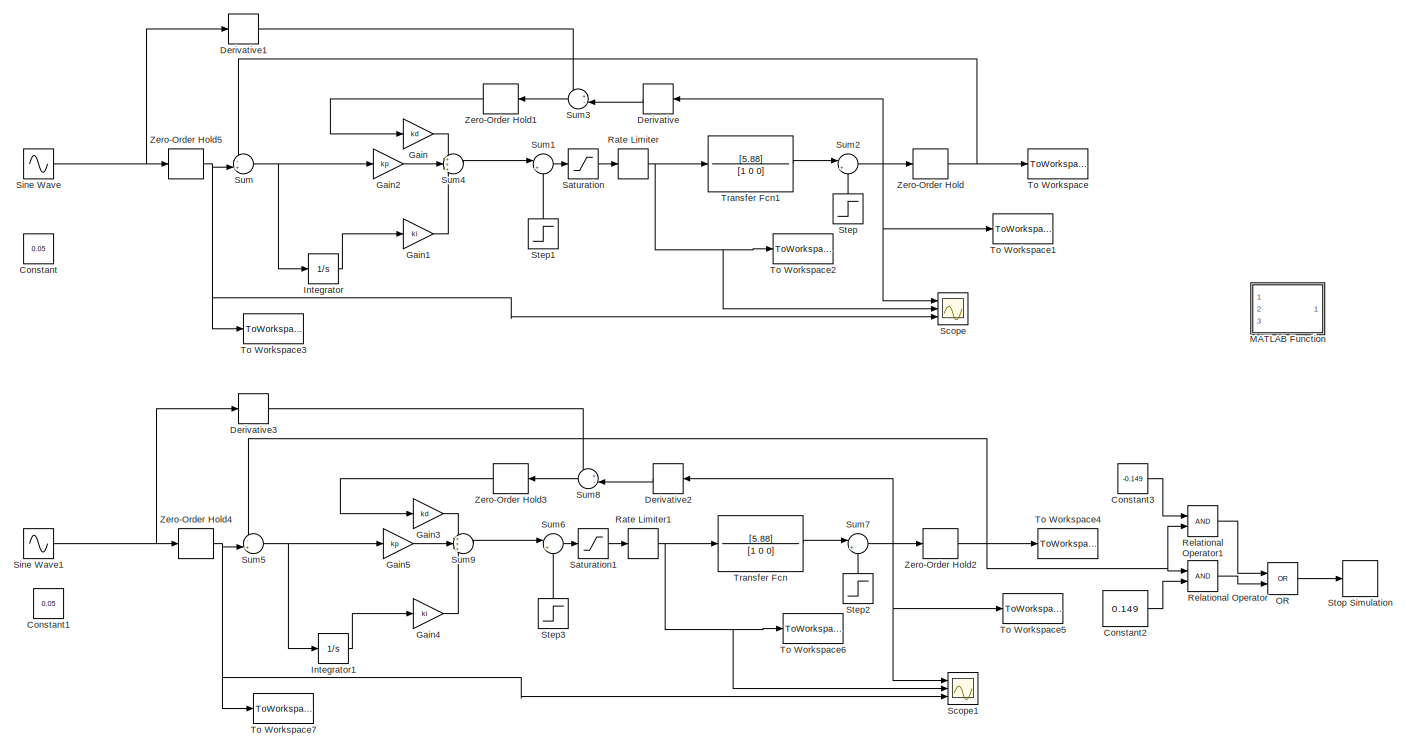
[diagram: root canvas - part 1/3, full width, top band]
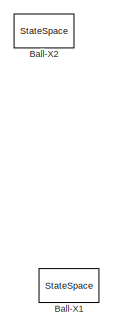
[diagram: root canvas - part 2/3, middle right region]
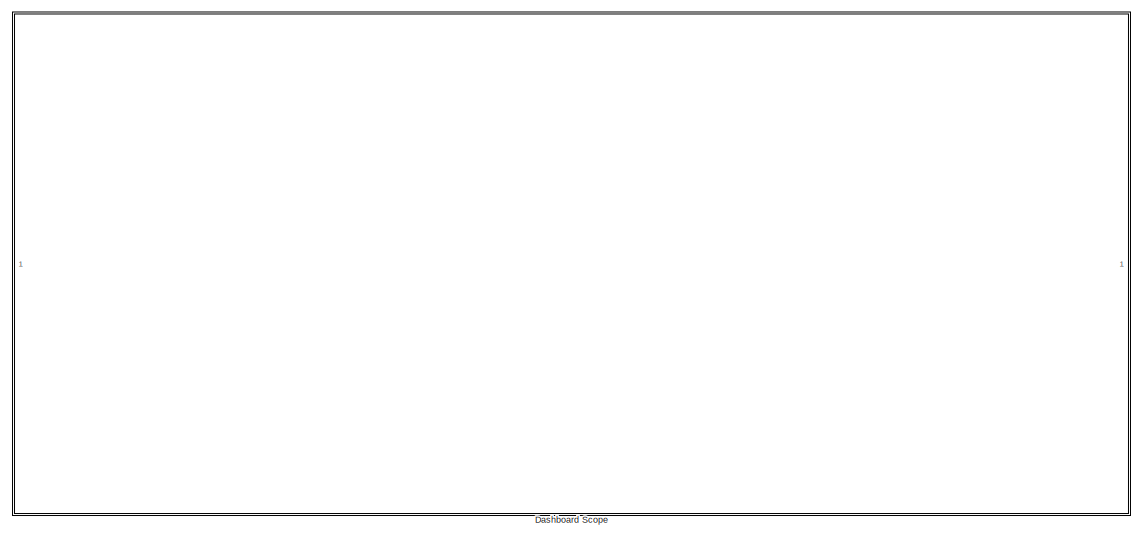
[diagram: root canvas - part 3/3, bottom center region]
MODEL slx_2f35ab165580
KIND model
CONFIG AbsTol = auto
CONFIG EnableMultiTasking = off
CONFIG FixedStep = 0.001
CONFIG MaxStep = auto
CONFIG MinStep = auto
CONFIG RelTol = 1e-3
CONFIG SampleTimeConstraint = Unconstrained
CONFIG Solver = ode4
CONFIG SolverName = ode4
CONFIG StartTime = 0.0
CONFIG StopTime = 20
BLOCK [StateSpace] Ball-X1
  A = a
  B = b
  C = c
  Commented = on
  D = d
  InitialCondition = 0
  Ports = [1, 1]
BLOCK [StateSpace] Ball-X2
  A = a
  B = b
  C = c
  Commented = on
  D = d
  InitialCondition = 0
  Ports = [1, 1]
BLOCK [Constant] Constant
  Value = 0.05
BLOCK [Constant] Constant1
  Value = 0.05
BLOCK [Constant] Constant2
  Commented = on
  Value = 0.149
BLOCK [Constant] Constant3
  Commented = on
  Value = -0.149
BLOCK [SubSystem] Dashboard Scope
  DialogController = hmiCreateDDGDialog
  IsWebBlock = on
  MaskHideContents = on
  Ports = []
  RequestExecContextInheritance = off
BLOCK [Derivative] Derivative
  CoefficientInTFapproximation = 0.005
BLOCK [Derivative] Derivative1
BLOCK [Derivative] Derivative2
  CoefficientInTFapproximation = 0.005
BLOCK [Derivative] Derivative3
BLOCK [Gain] Gain
  Gain = kd
  OutDataTypeStr = Inherit: Inherit via internal rule
  ParamDataTypeStr = Inherit: Inherit via internal rule
  SaturateOnIntegerOverflow = off
BLOCK [Gain] Gain1
  Gain = ki
  OutDataTypeStr = Inherit: Inherit via internal rule
  ParamDataTypeStr = Inherit: Inherit via internal rule
  SaturateOnIntegerOverflow = off
BLOCK [Gain] Gain2
  Gain = kp
  OutDataTypeStr = Inherit: Inherit via internal rule
  ParamDataTypeStr = Inherit: Inherit via internal rule
  SaturateOnIntegerOverflow = off
BLOCK [Gain] Gain3
  Gain = kd
  OutDataTypeStr = Inherit: Inherit via internal rule
  ParamDataTypeStr = Inherit: Inherit via internal rule
  SaturateOnIntegerOverflow = off
BLOCK [Gain] Gain4
  Gain = ki
  OutDataTypeStr = Inherit: Inherit via internal rule
  ParamDataTypeStr = Inherit: Inherit via internal rule
  SaturateOnIntegerOverflow = off
BLOCK [Gain] Gain5
  Gain = kp
  OutDataTypeStr = Inherit: Inherit via internal rule
  ParamDataTypeStr = Inherit: Inherit via internal rule
  SaturateOnIntegerOverflow = off
BLOCK [Integrator] Integrator
  Ports = [1, 1]
BLOCK [Integrator] Integrator1
  Ports = [1, 1]
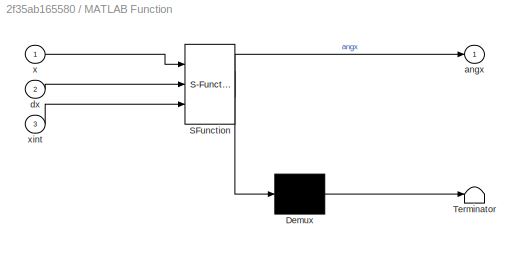
BLOCK [SubSystem] MATLAB Function
  Commented = on
  ErrorFcn = Stateflow.Translate.translate
  PermitHierarchicalResolution = ExplicitOnly
  Ports = [3, 1]
  RequestExecContextInheritance = off
  SFBlockType = MATLAB Function
  TreatAsAtomicUnit = on
BLOCK [Demux] MATLAB Function/ Demux 
  Outputs = 1
  Ports = [1, 1]
BLOCK [S-Function] MATLAB Function/ SFunction 
  EnableBusSupport = on
  FunctionName = sf_sfun
  PortCounts = [3 2]
  Ports = [3, 2]
  SFcnIsStateOwnerBlock = off
  SFunctionDeploymentMode = off
  Tag = Stateflow S-Function modelPID 2
BLOCK [Terminator] MATLAB Function/ Terminator 
BLOCK [Outport] MATLAB Function/angx
  IconDisplay = Port number
BLOCK [Inport] MATLAB Function/dx
  IconDisplay = Port number
  Port = 2
BLOCK [Inport] MATLAB Function/x
  IconDisplay = Port number
BLOCK [Inport] MATLAB Function/xint
  IconDisplay = Port number
  Port = 3
BLOCK [Logic] OR
  AllPortsSameDT = off
  Commented = on
  IconShape = distinctive
  Operator = OR
  OutDataTypeStr = boolean
  Ports = [2, 1]
BLOCK [RateLimiter] Rate Limiter
  FallingSlewLimit = -5
  RisingSlewLimit = 5
  SampleTimeMode = inherited
BLOCK [RateLimiter] Rate Limiter1
  FallingSlewLimit = -5
  RisingSlewLimit = 5
  SampleTimeMode = inherited
BLOCK [RelationalOperator] Relational Operator
  Commented = on
  InputSameDT = off
  OutDataTypeStr = boolean
  Ports = [2, 1]
  RndMeth = Simplest
BLOCK [RelationalOperator] Relational Operator1
  Commented = on
  InputSameDT = off
  OutDataTypeStr = boolean
  Ports = [2, 1]
  RndMeth = Simplest
BLOCK [Saturate] Saturation
  InputPortMap = u0
  LowerLimit = -0.262
  Ports = [1, 1]
  UpperLimit = 0.262
BLOCK [Saturate] Saturation1
  InputPortMap = u0
  LowerLimit = -0.262
  Ports = [1, 1]
  UpperLimit = 0.262
BLOCK [Scope] Scope
  Floating = off
  NumInputPorts = 3
  Ports = [3]
  ScopeSpecificationString = Simulink.scopes.TimeScopeBlockCfg('CurrentConfiguration', extmgr.ConfigurationSet(extmgr.Configuration('Core','General UI',true,'FigureColor',[1 1 1]),extmgr.Configuration('Core','Source UI',true),extmgr.Configuration('Sources','WiredSimulink',true),extmgr.Configuration('Visuals','Time Domain',true,'SerializedDisplays',{struct('MinYLimReal','-1.61443','MaxYLimReal','3.96966','YLabelReal','','MinYL...<+1761ch>
BLOCK [Scope] Scope1
  Floating = off
  NumInputPorts = 3
  Ports = [3]
  ScopeSpecificationString = Simulink.scopes.TimeScopeBlockCfg('CurrentConfiguration', extmgr.ConfigurationSet(extmgr.Configuration('Core','General UI',true,'FigureColor',[1 1 1]),extmgr.Configuration('Core','Source UI',true),extmgr.Configuration('Sources','WiredSimulink',true,'DataLoggingVariableName','ScopeData1'),extmgr.Configuration('Visuals','Time Domain',true,'SerializedDisplays',{struct('MinYLimReal','-1.61443','MaxYLi...<+1800ch>
BLOCK [Sin] Sine Wave
  Amplitude = 0.1
  Ports = [0, 1]
  SampleTime = 0
BLOCK [Sin] Sine Wave1
  Amplitude = 0.1
  Phase = -pi/2
  Ports = [0, 1]
  SampleTime = 0
BLOCK [Step] Step
  After = 0.15
  Commented = on
  SampleTime = 0
  Time = 5
BLOCK [Step] Step1
  After = pi/60
  Commented = on
  SampleTime = 0
  Time = 10
BLOCK [Step] Step2
  After = 0.15
  Commented = on
  SampleTime = 0
  Time = 5
BLOCK [Step] Step3
  After = pi/60
  Commented = on
  SampleTime = 0
  Time = 10
BLOCK [Stop] Stop Simulation
  Commented = on
BLOCK [Sum] Sum
  IconShape = round
  InputSameDT = off
  Inputs = -+|
  OutDataTypeStr = Inherit: Inherit via internal rule
  Ports = [2, 1]
  SaturateOnIntegerOverflow = off
BLOCK [Sum] Sum1
  IconShape = round
  InputSameDT = off
  Inputs = |++
  OutDataTypeStr = Inherit: Inherit via internal rule
  Ports = [2, 1]
  SaturateOnIntegerOverflow = off
BLOCK [Sum] Sum2
  IconShape = round
  InputSameDT = off
  Inputs = |++
  OutDataTypeStr = Inherit: Inherit via internal rule
  Ports = [2, 1]
  SaturateOnIntegerOverflow = off
BLOCK [Sum] Sum3
  IconShape = round
  InputSameDT = off
  Inputs = +-|
  OutDataTypeStr = Inherit: Inherit via internal rule
  Ports = [2, 1]
  SaturateOnIntegerOverflow = off
BLOCK [Sum] Sum4
  IconShape = round
  InputSameDT = off
  Inputs = +++
  OutDataTypeStr = Inherit: Inherit via internal rule
  Ports = [3, 1]
  SaturateOnIntegerOverflow = off
BLOCK [Sum] Sum5
  IconShape = round
  InputSameDT = off
  Inputs = -+|
  OutDataTypeStr = Inherit: Inherit via internal rule
  Ports = [2, 1]
  SaturateOnIntegerOverflow = off
BLOCK [Sum] Sum6
  IconShape = round
  InputSameDT = off
  Inputs = |++
  OutDataTypeStr = Inherit: Inherit via internal rule
  Ports = [2, 1]
  SaturateOnIntegerOverflow = off
BLOCK [Sum] Sum7
  IconShape = round
  InputSameDT = off
  Inputs = |++
  OutDataTypeStr = Inherit: Inherit via internal rule
  Ports = [2, 1]
  SaturateOnIntegerOverflow = off
BLOCK [Sum] Sum8
  IconShape = round
  InputSameDT = off
  Inputs = +-|
  OutDataTypeStr = Inherit: Inherit via internal rule
  Ports = [2, 1]
  SaturateOnIntegerOverflow = off
BLOCK [Sum] Sum9
  IconShape = round
  InputSameDT = off
  Inputs = +++
  OutDataTypeStr = Inherit: Inherit via internal rule
  Ports = [3, 1]
  SaturateOnIntegerOverflow = off
BLOCK [ToWorkspace] To Workspace
  FixptAsFi = on
  MaxDataPoints = inf
  Ports = [1]
  SampleTime = -1
  Save2DSignal = 3-D array (concatenate along third dimension)
  SaveFormat = Structure With Time
  VariableName = xpos
BLOCK [ToWorkspace] To Workspace1
  FixptAsFi = on
  MaxDataPoints = inf
  Ports = [1]
  SampleTime = -1
  Save2DSignal = 3-D array (concatenate along third dimension)
  SaveFormat = Structure With Time
  VariableName = position
BLOCK [ToWorkspace] To Workspace2
  FixptAsFi = on
  MaxDataPoints = inf
  Ports = [1]
  SampleTime = -1
  Save2DSignal = 3-D array (concatenate along third dimension)
  SaveFormat = Structure With Time
  VariableName = controlx
BLOCK [ToWorkspace] To Workspace3
  FixptAsFi = on
  MaxDataPoints = inf
  Ports = [1]
  SampleTime = -1
  Save2DSignal = 3-D array (concatenate along third dimension)
  SaveFormat = Structure With Time
  VariableName = setpointx
BLOCK [ToWorkspace] To Workspace4
  FixptAsFi = on
  MaxDataPoints = inf
  Ports = [1]
  SampleTime = -1
  Save2DSignal = 3-D array (concatenate along third dimension)
  SaveFormat = Structure With Time
  VariableName = ypos
BLOCK [ToWorkspace] To Workspace5
  FixptAsFi = on
  MaxDataPoints = inf
  Ports = [1]
  SampleTime = -1
  Save2DSignal = 3-D array (concatenate along third dimension)
  SaveFormat = Structure With Time
  VariableName = position1
BLOCK [ToWorkspace] To Workspace6
  FixptAsFi = on
  MaxDataPoints = inf
  Ports = [1]
  SampleTime = -1
  Save2DSignal = 3-D array (concatenate along third dimension)
  SaveFormat = Structure With Time
  VariableName = controly
BLOCK [ToWorkspace] To Workspace7
  FixptAsFi = on
  MaxDataPoints = inf
  Ports = [1]
  SampleTime = -1
  Save2DSignal = 3-D array (concatenate along third dimension)
  SaveFormat = Structure With Time
  VariableName = setpointy
BLOCK [TransferFcn] Transfer Fcn
  Denominator = [1 0 0]
  Numerator = [5.88]
BLOCK [TransferFcn] Transfer Fcn1
  Denominator = [1 0 0]
  Numerator = [5.88]
BLOCK [ZeroOrderHold] Zero-Order Hold
  SampleTime = ts
BLOCK [ZeroOrderHold] Zero-Order Hold1
  SampleTime = ts
BLOCK [ZeroOrderHold] Zero-Order Hold2
  SampleTime = ts
BLOCK [ZeroOrderHold] Zero-Order Hold3
  SampleTime = ts
BLOCK [ZeroOrderHold] Zero-Order Hold4
  SampleTime = ts
BLOCK [ZeroOrderHold] Zero-Order Hold5
  SampleTime = ts
LINE Constant2:1 -> Relational Operator:2
LINE Constant3:1 -> Relational Operator1:1
LINE Derivative1:1 -> Sum3:1
LINE Derivative2:1 -> Sum8:2
LINE Derivative3:1 -> Sum8:1
LINE Derivative:1 -> Sum3:2
LINE Gain1:1 -> Sum4:3
LINE Gain2:1 -> Sum4:2
LINE Gain3:1 -> Sum9:1
LINE Gain4:1 -> Sum9:3
LINE Gain5:1 -> Sum9:2
LINE Gain:1 -> Sum4:1
LINE Integrator1:1 -> Gain4:1
LINE Integrator:1 -> Gain1:1
LINE OR:1 -> Stop Simulation:1
NET Rate Limiter1:1 -> Scope1:2, To Workspace6:1, Transfer Fcn:1
NET Rate Limiter:1 -> Scope:2, To Workspace2:1, Transfer Fcn1:1
LINE Relational Operator1:1 -> OR:1
LINE Relational Operator:1 -> OR:2
LINE Saturation1:1 -> Rate Limiter1:1
LINE Saturation:1 -> Rate Limiter:1
NET Sine Wave1:1 -> Derivative3:1, Zero-Order Hold4:1
NET Sine Wave:1 -> Derivative1:1, Zero-Order Hold5:1
LINE Step1:1 -> Sum1:2
LINE Step2:1 -> Sum7:2
LINE Step3:1 -> Sum6:2
LINE Step:1 -> Sum2:2
LINE Sum1:1 -> Saturation:1
NET Sum2:1 -> Derivative:1, Scope:1, To Workspace1:1, Zero-Order Hold:1
LINE Sum3:1 -> Zero-Order Hold1:1
LINE Sum4:1 -> Sum1:1
NET Sum5:1 -> Gain5:1, Integrator1:1
LINE Sum6:1 -> Saturation1:1
NET Sum7:1 -> Derivative2:1, Scope1:1, To Workspace5:1, Zero-Order Hold2:1
LINE Sum8:1 -> Zero-Order Hold3:1
LINE Sum9:1 -> Sum6:1
NET Sum:1 -> Gain2:1, Integrator:1
LINE Transfer Fcn1:1 -> Sum2:1
LINE Transfer Fcn:1 -> Sum7:1
LINE Zero-Order Hold1:1 -> Gain:1
NET Zero-Order Hold2:1 -> Relational Operator1:2, Relational Operator:1, Sum5:1, To Workspace4:1
LINE Zero-Order Hold3:1 -> Gain3:1
NET Zero-Order Hold4:1 -> Scope1:3, Sum5:2, To Workspace7:1
NET Zero-Order Hold5:1 -> Scope:3, Sum:2, To Workspace3:1
NET Zero-Order Hold:1 -> Sum:1, To Workspace:1
note: NET lines group one-source signal fan-out (src -> all destinations, sorted); 1:1 wires keep LINE
CHART MATLAB Function states=1 transitions=1
  STATE_LABEL 'eML_blk_kernel()'
  STATE_LABEL 'SCRIPT:\nfunction angx = fcn(x, dx, xint)\nkp=118.28;\nki=82.7;%/kp; %3.79\nkd=41.6;%/kp;%2.26\n\n% angx=kp*(x+kd*dx+ki*xint);\nangx=kp*x+kd*dx+ki*xint;\n'
